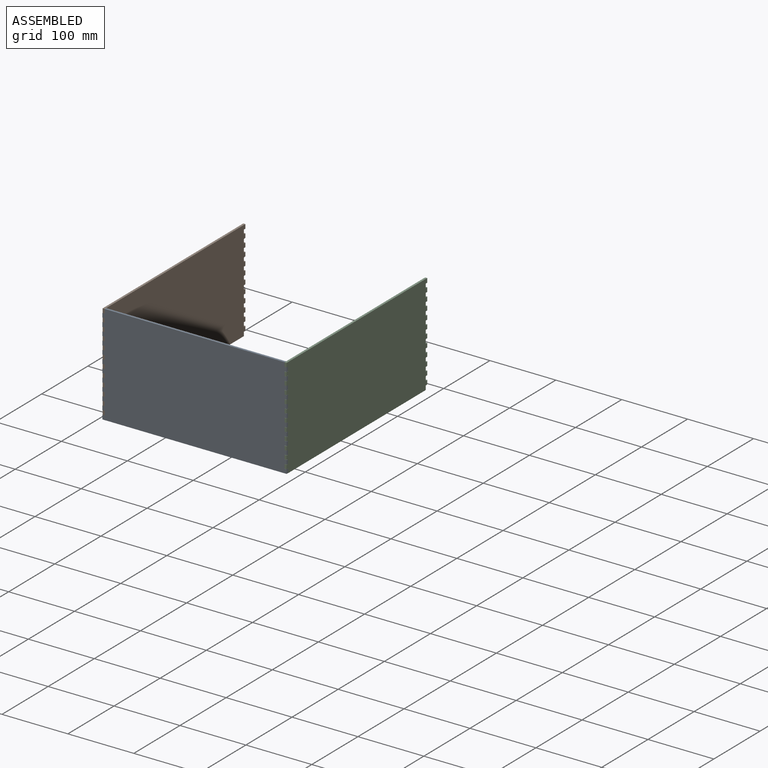
[diagram: assembled view]
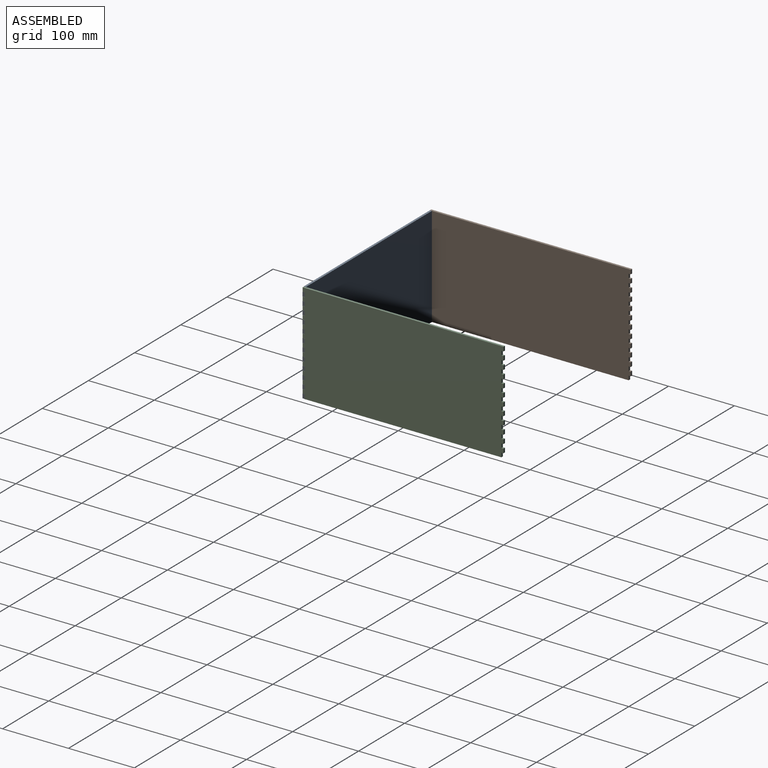
[diagram: assembled view, second angle]
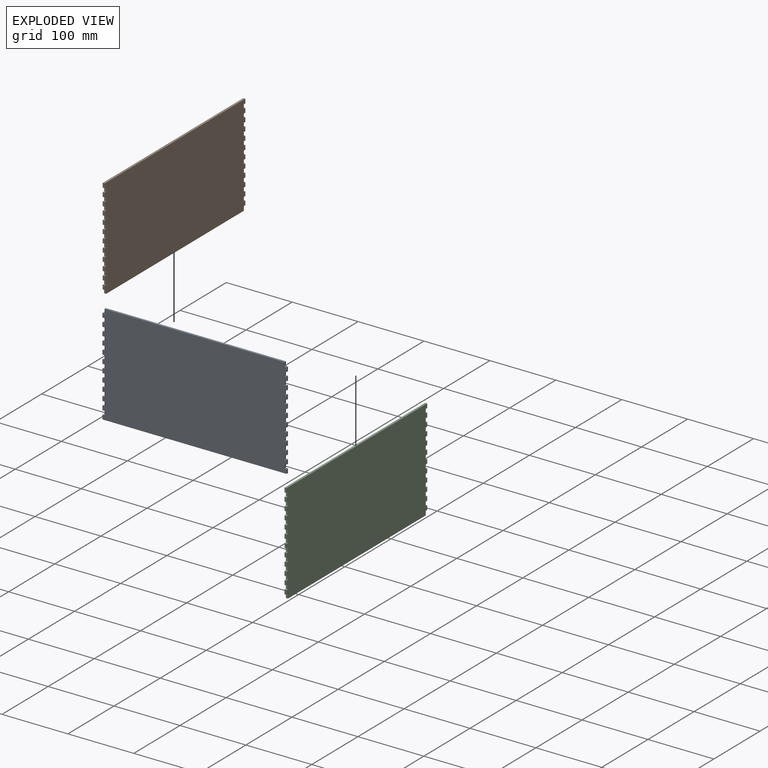
[diagram: exploded view]
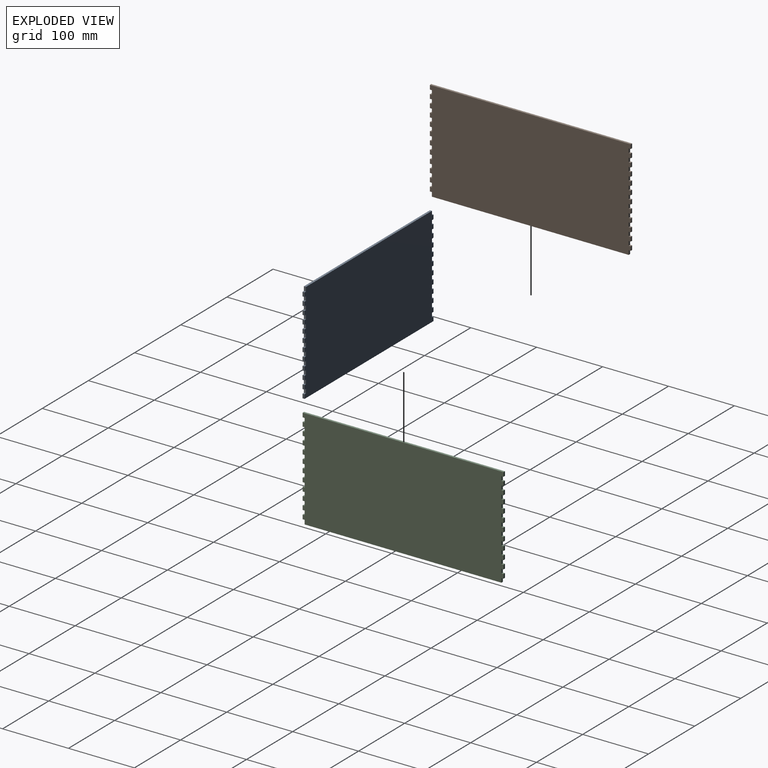
[diagram: exploded view, second angle]
ASSEMBLY  parts=3 mates=2
PART A: 98 faces, bbox 279.4x3.2x152.4 mm
  f0: plane 6.35x3.18mm, normal (-1,0,0), area 20.2mm2, adj f23,f24,f91,f95
  f1: plane 6.35x3.18mm, normal (-1,0,0), area 20.2mm2, adj f23,f24,f89,f90
  f2: plane 6.35x3.18mm, normal (-1,0,0), area 20.2mm2, adj f23,f24,f74,f88
  f3: plane 6.35x3.18mm, normal (-1,0,0), area 20.2mm2, adj f23,f24,f71,f73
  f4: plane 6.35x3.18mm, normal (-1,0,0), area 20.2mm2, adj f23,f24,f68,f70
  f5: plane 6.35x3.18mm, normal (-1,0,0), area 20.2mm2, adj f23,f24,f65,f67
  f6: plane 6.35x3.18mm, normal (-1,0,0), area 20.2mm2, adj f23,f24,f62,f64
  f7: plane 6.35x3.18mm, normal (-1,0,0), area 20.2mm2, adj f23,f24,f59,f61
  f8: plane 6.35x3.18mm, normal (-1,0,0), area 20.2mm2, adj f23,f24,f56,f58
  f9: plane 6.35x3.18mm, normal (-1,0,0), area 20.2mm2, adj f23,f24,f53,f55
  f10: plane 6.35x3.18mm, normal (-1,0,0), area 20.2mm2, adj f23,f24,f29,f52
  f11: plane 6.35x3.18mm, normal (1,0,0), area 20.2mm2, adj f23,f24,f85,f96
  f12: plane 6.35x3.18mm, normal (1,0,0), area 20.2mm2, adj f23,f24,f83,f84
  f13: plane 6.35x3.18mm, normal (1,0,0), area 20.2mm2, adj f23,f24,f80,f82
  f14: plane 6.35x3.18mm, normal (1,0,0), area 20.2mm2, adj f23,f24,f77,f79
  f15: plane 6.35x3.18mm, normal (1,0,0), area 20.2mm2, adj f23,f24,f49,f76
  f16: plane 6.35x3.18mm, normal (1,0,0), area 20.2mm2, adj f23,f24,f46,f48
  f17: plane 6.35x3.18mm, normal (1,0,0), area 20.2mm2, adj f23,f24,f44,f45
  f18: plane 6.35x3.18mm, normal (1,0,0), area 20.2mm2, adj f23,f24,f39,f43
  f19: plane 6.35x3.18mm, normal (1,0,0), area 20.2mm2, adj f23,f24,f38,f41
  f20: plane 6.35x3.18mm, normal (1,0,0), area 20.2mm2, adj f23,f24,f33,f37
  f21: plane 6.35x3.18mm, normal (1,0,0), area 20.2mm2, adj f23,f24,f31,f35
  f22: plane 273.05x3.18mm, normal (0,0,1), area 866.9mm2, adj f23,f24,f28,f97
  f23: plane 279.4x152.4mm, normal (0,-1,0), area 42096.7mm2, adj f0,f1,f2,f3,f4,f5,f6,f7
  f24: plane 279.4x152.4mm, normal (0,1,0), area 42096.7mm2, adj f0,f1,f2,f3,f4,f5,f6,f7
  f25: plane 6.35x3.18mm, normal (-1,0,0), area 20.2mm2, adj f23,f24,f27,f93
  f26: plane 6.35x3.18mm, normal (1,0,0), area 20.2mm2, adj f23,f24,f27,f30
  f27: plane 279.4x3.18mm, normal (0,0,-1), area 887.1mm2, adj f23,f24,f25,f26
  f28: plane 6.35x3.18mm, normal (-1,0,0), area 20.2mm2, adj f22,f23,f24,f29
  f29: plane 3.18x3.18mm, normal (0,0,1), area 10.1mm2, adj f10,f23,f24,f28
  f30: plane 3.18x3.18mm, normal (0,0,1), area 10.1mm2, adj f23,f24,f26,f32
  f31: plane 3.18x3.18mm, normal (0,0,-1), area 10.1mm2, adj f21,f23,f24,f32
  f32: plane 6.35x3.18mm, normal (1,0,0), area 20.2mm2, adj f23,f24,f30,f31
  f33: plane 3.18x3.18mm, normal (0,0,-1), area 10.1mm2, adj f20,f23,f24,f34
  f34: plane 6.35x3.18mm, normal (1,0,0), area 20.2mm2, adj f23,f24,f33,f35
  f35: plane 3.18x3.18mm, normal (0,0,1), area 10.1mm2, adj f21,f23,f24,f34
  f36: plane 6.35x3.18mm, normal (1,0,0), area 20.2mm2, adj f23,f24,f37,f38
  f37: plane 3.18x3.18mm, normal (0,0,1), area 10.1mm2, adj f20,f23,f24,f36
  f38: plane 3.18x3.18mm, normal (0,0,-1), area 10.1mm2, adj f19,f23,f24,f36
  f39: plane 3.18x3.18mm, normal (0,0,-1), area 10.1mm2, adj f18,f23,f24,f40
  f40: plane 6.35x3.18mm, normal (1,0,0), area 20.2mm2, adj f23,f24,f39,f41
  f41: plane 3.18x3.18mm, normal (0,0,1), area 10.1mm2, adj f19,f23,f24,f40
  f42: plane 6.35x3.18mm, normal (1,0,0), area 20.2mm2, adj f23,f24,f43,f44
  f43: plane 3.18x3.18mm, normal (0,0,1), area 10.1mm2, adj f18,f23,f24,f42
  f44: plane 3.18x3.18mm, normal (0,0,-1), area 10.1mm2, adj f17,f23,f24,f42
  f45: plane 3.18x3.18mm, normal (0,0,1), area 10.1mm2, adj f17,f23,f24,f47
  f46: plane 3.18x3.18mm, normal (0,0,-1), area 10.1mm2, adj f16,f23,f24,f47
  f47: plane 6.35x3.18mm, normal (1,0,0), area 20.2mm2, adj f23,f24,f45,f46
  f48: plane 3.18x3.18mm, normal (0,0,1), area 10.1mm2, adj f16,f23,f24,f50
  f49: plane 3.18x3.18mm, normal (0,0,-1), area 10.1mm2, adj f15,f23,f24,f50
  f50: plane 6.35x3.18mm, normal (1,0,0), area 20.2mm2, adj f23,f24,f48,f49
  f51: plane 6.35x3.18mm, normal (-1,0,0), area 20.2mm2, adj f23,f24,f52,f53
  f52: plane 3.18x3.18mm, normal (0,0,-1), area 10.1mm2, adj f10,f23,f24,f51
  f53: plane 3.18x3.18mm, normal (0,0,1), area 10.1mm2, adj f9,f23,f24,f51
  f54: plane 6.35x3.18mm, normal (-1,0,0), area 20.2mm2, adj f23,f24,f55,f56
  f55: plane 3.18x3.18mm, normal (0,0,-1), area 10.1mm2, adj f9,f23,f24,f54
  f56: plane 3.18x3.18mm, normal (0,0,1), area 10.1mm2, adj f8,f23,f24,f54
  f57: plane 6.35x3.18mm, normal (-1,0,0), area 20.2mm2, adj f23,f24,f58,f59
  f58: plane 3.18x3.18mm, normal (0,0,-1), area 10.1mm2, adj f8,f23,f24,f57
  f59: plane 3.18x3.18mm, normal (0,0,1), area 10.1mm2, adj f7,f23,f24,f57
  f60: plane 6.35x3.18mm, normal (-1,0,0), area 20.2mm2, adj f23,f24,f61,f62
  f61: plane 3.18x3.18mm, normal (0,0,-1), area 10.1mm2, adj f7,f23,f24,f60
  f62: plane 3.18x3.18mm, normal (0,0,1), area 10.1mm2, adj f6,f23,f24,f60
  f63: plane 6.35x3.18mm, normal (-1,0,0), area 20.2mm2, adj f23,f24,f64,f65
  f64: plane 3.18x3.18mm, normal (0,0,-1), area 10.1mm2, adj f6,f23,f24,f63
  f65: plane 3.18x3.18mm, normal (0,0,1), area 10.1mm2, adj f5,f23,f24,f63
  f66: plane 6.35x3.18mm, normal (-1,0,0), area 20.2mm2, adj f23,f24,f67,f68
  f67: plane 3.18x3.18mm, normal (0,0,-1), area 10.1mm2, adj f5,f23,f24,f66
  f68: plane 3.18x3.18mm, normal (0,0,1), area 10.1mm2, adj f4,f23,f24,f66
  f69: plane 6.35x3.18mm, normal (-1,0,0), area 20.2mm2, adj f23,f24,f70,f71
  f70: plane 3.18x3.18mm, normal (0,0,-1), area 10.1mm2, adj f4,f23,f24,f69
  f71: plane 3.18x3.18mm, normal (0,0,1), area 10.1mm2, adj f3,f23,f24,f69
  f72: plane 6.35x3.18mm, normal (-1,0,0), area 20.2mm2, adj f23,f24,f73,f74
  f73: plane 3.18x3.18mm, normal (0,0,-1), area 10.1mm2, adj f3,f23,f24,f72
  f74: plane 3.18x3.18mm, normal (0,0,1), area 10.1mm2, adj f2,f23,f24,f72
  f75: plane 6.35x3.18mm, normal (1,0,0), area 20.2mm2, adj f23,f24,f76,f77
  f76: plane 3.18x3.18mm, normal (0,0,1), area 10.1mm2, adj f15,f23,f24,f75
  f77: plane 3.18x3.18mm, normal (0,0,-1), area 10.1mm2, adj f14,f23,f24,f75
  f78: plane 6.35x3.18mm, normal (1,0,0), area 20.2mm2, adj f23,f24,f79,f80
  f79: plane 3.18x3.18mm, normal (0,0,1), area 10.1mm2, adj f14,f23,f24,f78
  f80: plane 3.18x3.18mm, normal (0,0,-1), area 10.1mm2, adj f13,f23,f24,f78
  f81: plane 6.35x3.18mm, normal (1,0,0), area 20.2mm2, adj f23,f24,f82,f83
  f82: plane 3.18x3.18mm, normal (0,0,1), area 10.1mm2, adj f13,f23,f24,f81
  f83: plane 3.18x3.18mm, normal (0,0,-1), area 10.1mm2, adj f12,f23,f24,f81
  f84: plane 3.18x3.18mm, normal (0,0,1), area 10.1mm2, adj f12,f23,f24,f86
  f85: plane 3.18x3.18mm, normal (0,0,-1), area 10.1mm2, adj f11,f23,f24,f86
  f86: plane 6.35x3.18mm, normal (1,0,0), area 20.2mm2, adj f23,f24,f84,f85
  f87: plane 6.35x3.18mm, normal (-1,0,0), area 20.2mm2, adj f23,f24,f88,f89
  f88: plane 3.18x3.18mm, normal (0,0,-1), area 10.1mm2, adj f2,f23,f24,f87
  f89: plane 3.18x3.18mm, normal (0,0,1), area 10.1mm2, adj f1,f23,f24,f87
  f90: plane 3.18x3.18mm, normal (0,0,-1), area 10.1mm2, adj f1,f23,f24,f92
  f91: plane 3.18x3.18mm, normal (0,0,1), area 10.1mm2, adj f0,f23,f24,f92
  f92: plane 6.35x3.18mm, normal (-1,0,0), area 20.2mm2, adj f23,f24,f90,f91
  f93: plane 3.18x3.18mm, normal (0,0,1), area 10.1mm2, adj f23,f24,f25,f94
  f94: plane 6.35x3.18mm, normal (-1,0,0), area 20.2mm2, adj f23,f24,f93,f95
  f95: plane 3.18x3.18mm, normal (0,0,-1), area 10.1mm2, adj f0,f23,f24,f94
  f96: plane 3.18x3.18mm, normal (0,0,1), area 10.1mm2, adj f11,f23,f24,f97
  f97: plane 6.35x3.18mm, normal (1,0,0), area 20.2mm2, adj f22,f23,f24,f96
PART B: 98 faces, bbox 3.2x304.8x152.4 mm
  f0: plane 6.35x3.18mm, normal (0,-1,0), area 20.2mm2, adj f25,f26,f27,f96
  f1: plane 6.35x3.18mm, normal (0,-1,0), area 20.2mm2, adj f25,f26,f84,f95
  f2: plane 6.35x3.18mm, normal (0,-1,0), area 20.2mm2, adj f25,f26,f83,f86
  f3: plane 6.35x3.18mm, normal (0,-1,0), area 20.2mm2, adj f25,f26,f80,f82
  f4: plane 6.35x3.18mm, normal (0,-1,0), area 20.2mm2, adj f25,f26,f77,f79
  f5: plane 6.35x3.18mm, normal (0,-1,0), area 20.2mm2, adj f25,f26,f48,f76
  f6: plane 6.35x3.18mm, normal (0,-1,0), area 20.2mm2, adj f25,f26,f46,f50
  f7: plane 6.35x3.18mm, normal (0,-1,0), area 20.2mm2, adj f25,f26,f42,f45
  f8: plane 6.35x3.18mm, normal (0,-1,0), area 20.2mm2, adj f25,f26,f41,f44
  f9: plane 6.35x3.18mm, normal (0,-1,0), area 20.2mm2, adj f25,f26,f37,f40
  f10: plane 6.35x3.18mm, normal (0,-1,0), area 20.2mm2, adj f25,f26,f34,f36
  f11: plane 6.35x3.18mm, normal (0,-1,0), area 20.2mm2, adj f25,f26,f31,f33
  f12: plane 6.35x3.18mm, normal (0,1,0), area 20.2mm2, adj f25,f26,f91,f93
  f13: plane 6.35x3.18mm, normal (0,1,0), area 20.2mm2, adj f25,f26,f87,f90
  f14: plane 6.35x3.18mm, normal (0,1,0), area 20.2mm2, adj f25,f26,f74,f89
  f15: plane 6.35x3.18mm, normal (0,1,0), area 20.2mm2, adj f25,f26,f71,f73
  f16: plane 6.35x3.18mm, normal (0,1,0), area 20.2mm2, adj f25,f26,f68,f70
  f17: plane 6.35x3.18mm, normal (0,1,0), area 20.2mm2, adj f25,f26,f65,f67
  f18: plane 6.35x3.18mm, normal (0,1,0), area 20.2mm2, adj f25,f26,f62,f64
  f19: plane 6.35x3.18mm, normal (0,1,0), area 20.2mm2, adj f25,f26,f59,f61
  f20: plane 6.35x3.18mm, normal (0,1,0), area 20.2mm2, adj f25,f26,f56,f58
  f21: plane 6.35x3.18mm, normal (0,1,0), area 20.2mm2, adj f25,f26,f52,f55
  f22: plane 6.35x3.18mm, normal (0,1,0), area 20.2mm2, adj f25,f26,f29,f51
  f23: plane 6.35x3.18mm, normal (0,1,0), area 20.2mm2, adj f25,f26,f27,f28
  f24: plane 298.45x3.18mm, normal (0,0,-1), area 947.6mm2, adj f25,f26,f32,f94
  f25: plane 304.8x152.4mm, normal (-1,0,0), area 45967.7mm2, adj f0,f1,f2,f3,f4,f5,f6,f7
  f26: plane 304.8x152.4mm, normal (1,0,0), area 45967.7mm2, adj f0,f1,f2,f3,f4,f5,f6,f7
  f27: plane 304.8x3.18mm, normal (0,0,1), area 967.7mm2, adj f0,f23,f25,f26
  f28: plane 3.18x3.18mm, normal (0,0,-1), area 10.1mm2, adj f23,f25,f26,f30
  f29: plane 3.18x3.18mm, normal (0,0,1), area 10.1mm2, adj f22,f25,f26,f30
  f30: plane 6.35x3.18mm, normal (0,1,0), area 20.2mm2, adj f25,f26,f28,f29
  f31: plane 3.18x3.18mm, normal (0,0,-1), area 10.1mm2, adj f11,f25,f26,f32
  f32: plane 6.35x3.18mm, normal (0,-1,0), area 20.2mm2, adj f24,f25,f26,f31
  f33: plane 3.18x3.18mm, normal (0,0,1), area 10.1mm2, adj f11,f25,f26,f35
  f34: plane 3.18x3.18mm, normal (0,0,-1), area 10.1mm2, adj f10,f25,f26,f35
  f35: plane 6.35x3.18mm, normal (0,-1,0), area 20.2mm2, adj f25,f26,f33,f34
  f36: plane 3.18x3.18mm, normal (0,0,1), area 10.1mm2, adj f10,f25,f26,f38
  f37: plane 3.18x3.18mm, normal (0,0,-1), area 10.1mm2, adj f9,f25,f26,f38
  f38: plane 6.35x3.18mm, normal (0,-1,0), area 20.2mm2, adj f25,f26,f36,f37
  f39: plane 6.35x3.18mm, normal (0,-1,0), area 20.2mm2, adj f25,f26,f40,f41
  f40: plane 3.18x3.18mm, normal (0,0,1), area 10.1mm2, adj f9,f25,f26,f39
  f41: plane 3.18x3.18mm, normal (0,0,-1), area 10.1mm2, adj f8,f25,f26,f39
  f42: plane 3.18x3.18mm, normal (0,0,-1), area 10.1mm2, adj f7,f25,f26,f43
  f43: plane 6.35x3.18mm, normal (0,-1,0), area 20.2mm2, adj f25,f26,f42,f44
  f44: plane 3.18x3.18mm, normal (0,0,1), area 10.1mm2, adj f8,f25,f26,f43
  f45: plane 3.18x3.18mm, normal (0,0,1), area 10.1mm2, adj f7,f25,f26,f47
  f46: plane 3.18x3.18mm, normal (0,0,-1), area 10.1mm2, adj f6,f25,f26,f47
  f47: plane 6.35x3.18mm, normal (0,-1,0), area 20.2mm2, adj f25,f26,f45,f46
  f48: plane 3.18x3.18mm, normal (0,0,-1), area 10.1mm2, adj f5,f25,f26,f49
  f49: plane 6.35x3.18mm, normal (0,-1,0), area 20.2mm2, adj f25,f26,f48,f50
  f50: plane 3.18x3.18mm, normal (0,0,1), area 10.1mm2, adj f6,f25,f26,f49
  f51: plane 3.18x3.18mm, normal (0,0,-1), area 10.1mm2, adj f22,f25,f26,f53
  f52: plane 3.18x3.18mm, normal (0,0,1), area 10.1mm2, adj f21,f25,f26,f53
  f53: plane 6.35x3.18mm, normal (0,1,0), area 20.2mm2, adj f25,f26,f51,f52
  f54: plane 6.35x3.18mm, normal (0,1,0), area 20.2mm2, adj f25,f26,f55,f56
  f55: plane 3.18x3.18mm, normal (0,0,-1), area 10.1mm2, adj f21,f25,f26,f54
  f56: plane 3.18x3.18mm, normal (0,0,1), area 10.1mm2, adj f20,f25,f26,f54
  f57: plane 6.35x3.18mm, normal (0,1,0), area 20.2mm2, adj f25,f26,f58,f59
  f58: plane 3.18x3.18mm, normal (0,0,-1), area 10.1mm2, adj f20,f25,f26,f57
  f59: plane 3.18x3.18mm, normal (0,0,1), area 10.1mm2, adj f19,f25,f26,f57
  f60: plane 6.35x3.18mm, normal (0,1,0), area 20.2mm2, adj f25,f26,f61,f62
  f61: plane 3.18x3.18mm, normal (0,0,-1), area 10.1mm2, adj f19,f25,f26,f60
  f62: plane 3.18x3.18mm, normal (0,0,1), area 10.1mm2, adj f18,f25,f26,f60
  f63: plane 6.35x3.18mm, normal (0,1,0), area 20.2mm2, adj f25,f26,f64,f65
  f64: plane 3.18x3.18mm, normal (0,0,-1), area 10.1mm2, adj f18,f25,f26,f63
  f65: plane 3.18x3.18mm, normal (0,0,1), area 10.1mm2, adj f17,f25,f26,f63
  f66: plane 6.35x3.18mm, normal (0,1,0), area 20.2mm2, adj f25,f26,f67,f68
  f67: plane 3.18x3.18mm, normal (0,0,-1), area 10.1mm2, adj f17,f25,f26,f66
  f68: plane 3.18x3.18mm, normal (0,0,1), area 10.1mm2, adj f16,f25,f26,f66
  f69: plane 6.35x3.18mm, normal (0,1,0), area 20.2mm2, adj f25,f26,f70,f71
  f70: plane 3.18x3.18mm, normal (0,0,-1), area 10.1mm2, adj f16,f25,f26,f69
  f71: plane 3.18x3.18mm, normal (0,0,1), area 10.1mm2, adj f15,f25,f26,f69
  f72: plane 6.35x3.18mm, normal (0,1,0), area 20.2mm2, adj f25,f26,f73,f74
  f73: plane 3.18x3.18mm, normal (0,0,-1), area 10.1mm2, adj f15,f25,f26,f72
  f74: plane 3.18x3.18mm, normal (0,0,1), area 10.1mm2, adj f14,f25,f26,f72
  f75: plane 6.35x3.18mm, normal (0,-1,0), area 20.2mm2, adj f25,f26,f76,f77
  f76: plane 3.18x3.18mm, normal (0,0,1), area 10.1mm2, adj f5,f25,f26,f75
  f77: plane 3.18x3.18mm, normal (0,0,-1), area 10.1mm2, adj f4,f25,f26,f75
  f78: plane 6.35x3.18mm, normal (0,-1,0), area 20.2mm2, adj f25,f26,f79,f80
  f79: plane 3.18x3.18mm, normal (0,0,1), area 10.1mm2, adj f4,f25,f26,f78
  f80: plane 3.18x3.18mm, normal (0,0,-1), area 10.1mm2, adj f3,f25,f26,f78
  f81: plane 6.35x3.18mm, normal (0,-1,0), area 20.2mm2, adj f25,f26,f82,f83
  f82: plane 3.18x3.18mm, normal (0,0,1), area 10.1mm2, adj f3,f25,f26,f81
  f83: plane 3.18x3.18mm, normal (0,0,-1), area 10.1mm2, adj f2,f25,f26,f81
  f84: plane 3.18x3.18mm, normal (0,0,-1), area 10.1mm2, adj f1,f25,f26,f85
  f85: plane 6.35x3.18mm, normal (0,-1,0), area 20.2mm2, adj f25,f26,f84,f86
  f86: plane 3.18x3.18mm, normal (0,0,1), area 10.1mm2, adj f2,f25,f26,f85
  f87: plane 3.18x3.18mm, normal (0,0,1), area 10.1mm2, adj f13,f25,f26,f88
  f88: plane 6.35x3.18mm, normal (0,1,0), area 20.2mm2, adj f25,f26,f87,f89
  f89: plane 3.18x3.18mm, normal (0,0,-1), area 10.1mm2, adj f14,f25,f26,f88
  f90: plane 3.18x3.18mm, normal (0,0,-1), area 10.1mm2, adj f13,f25,f26,f92
  f91: plane 3.18x3.18mm, normal (0,0,1), area 10.1mm2, adj f12,f25,f26,f92
  f92: plane 6.35x3.18mm, normal (0,1,0), area 20.2mm2, adj f25,f26,f90,f91
  f93: plane 3.18x3.18mm, normal (0,0,-1), area 10.1mm2, adj f12,f25,f26,f94
  f94: plane 6.35x3.18mm, normal (0,1,0), area 20.2mm2, adj f24,f25,f26,f93
  f95: plane 3.18x3.18mm, normal (0,0,1), area 10.1mm2, adj f1,f25,f26,f97
  f96: plane 3.18x3.18mm, normal (0,0,-1), area 10.1mm2, adj f0,f25,f26,f97
  f97: plane 6.35x3.18mm, normal (0,-1,0), area 20.2mm2, adj f25,f26,f95,f96
PART C: same geometry as B
PLACE A t=(-135.46,-130.56,16.5)mm
PLACE B t=(-273.28,20.25,16.5)mm
PLACE C t=(2.52,20.33,16.22)mm
MATE parallel A.f84 <-> C.f84  axis (0,0,1) through (4.24,-132.15,149.85)mm
MATE parallel B.f96 <-> A.f29  axis (0,0,-1) through (-271.7,-130.56,162.55)mm
